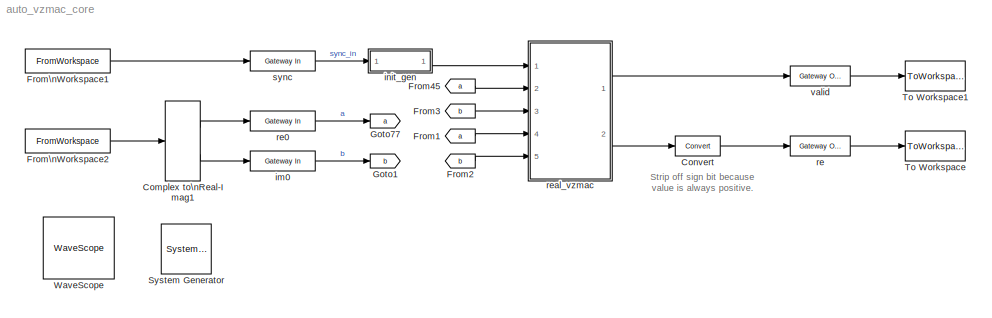
MODEL auto_vzmac_core
KIND model
CONFIG PreLoadFcn = if ~exist('sync')\n  sync=[1];\nend\nif ~exist('zin0')\n  zin0=complex( ...\n    floor(256*rand(1,15*2048+1))/128-1, ...\n    floor(256*rand(1,15*2048+1))/128-1  ...\n  );\nend\n
BLOCK [Reference]  System Generator  REF=xbsIndex_r4/ System Generator
  AttributesFormatString = System\\nGenerator
  Impl_file = ISE Defaults
  Ports = []
  SID = 1
  SourceBlock = xbsIndex_r4/ System Generator
  SourceType = Xilinx System Generator Block
  Synth_file = XST Defaults
  Tag = genX
  UserData = DataTag0
  UserDataPersistent = on
  block_type = sysgen
  clock_wrapper = Clock Enables
  core_generation = According to Block Masks
  dbl_ovrd = According to Block Masks
  dcm_input_clock_period = 10
  deprecated_control = off
  directory = ./auto_vzmac_core
  eval_field = 0
  has_advanced_control = 0
  incr_netlist = off
  infoedit = System Generator
  package = ff1759
  part = xc6vsx475t
  proj_type = Project Navigator
  run_coregen = off
  sg_icon_stat = 50,50,0,0,token,white,0,58c5b5770fe5f7c311f53dbc6e73f0f6,right,,[ ],[ ]
  sg_mask_display = fprintf('','COMMENT: begin icon graphics');\npatch([0 50 50 0 0 ],[0 0 50 50 0 ],[1 1 1 ]);\npatch([1.6375 16.81 27.31 37.81 48.31 27.31 12.1375 1.6375 ],[36.655 36.655 47.155 36.655 47.155 47.155 47.155 36.655 ],[0.933333 0.203922 0.141176 ]);\npatch([12.1375 27.31 16.81 1.6375 12.1375 ],[26.155 26.155 36.655 36.655 26.155 ],[0.698039 0.0313725 0.219608 ]);\npatch([1.6375 16.81 27.31 12.1375 1.63...<+335ch>
  sggui_pos = 326,241,464,470
  simulink_period = 1
  speed = -1
  synthesis_tool = XST
  sysclk_period = 10
  testbench = off
  trim_vbits = Everywhere in SubSystem
  xilinxfamily = virtex6
BLOCK [ComplexToRealImag] Complex to\nReal-Imag1
  Ports = [1, 2]
  SID = 134
BLOCK [Reference] Convert  REF=xbsIndex_r4/Convert
  Ports = [1, 1]
  SID = 139
  SourceBlock = xbsIndex_r4/Convert
  SourceType = Xilinx Type Converter Block
  arith_type = Unsigned
  bin_pt = 14
  block_type = convert
  dbl_ovrd = off
  en = off
  exp_bits = 8
  float_type = Single
  fraction_bits = 24
  gui_display_data_type = Fixed-point
  has_advanced_control = 0
  infoedit = Hardware notes: rounding and saturating require hardware resources; truncating and wrapping do not.
  latency = 0
  n_bits = 20
  overflow = Wrap
  pipeline = off
  quantization = Truncate
  sg_icon_stat = 45,20,1,1,white,blue,0,edca21da,right,,[ ],[ ]
  sg_mask_display = fprintf('','COMMENT: begin icon graphics');\npatch([0 45 45 0 0 ],[0 0 20 20 0 ],[0.77 0.82 0.91 ]);\nplot([0 45 45 0 0 ],[0 0 20 20 0 ]);\npatch([17.55 20.44 22.44 24.44 26.44 22.44 19.55 17.55 ],[12.22 12.22 14.22 12.22 14.22 14.22 14.22 12.22 ],[1 1 1 ]);\npatch([19.55 22.44 20.44 17.55 19.55 ],[10.22 10.22 12.22 12.22 10.22 ],[0.931 0.946 0.973 ]);\npatch([17.55 20.44 22.44 19.55 17.55 ],[8.22...<+320ch>
  sggui_pos = -1,-1,-1,-1
  xl_area = [0,0,0,0,0,0,0]
  xl_use_area = off
BLOCK [From] From1
  CloseFcn = tagdialog Close
  GotoTag = a
  SID = 51
BLOCK [From] From2
  CloseFcn = tagdialog Close
  GotoTag = b
  SID = 52
BLOCK [From] From3
  CloseFcn = tagdialog Close
  GotoTag = b
  SID = 53
BLOCK [From] From45
  CloseFcn = tagdialog Close
  GotoTag = a
  SID = 32
BLOCK [FromWorkspace] From\nWorkspace1
  Interpolate = off
  OutputAfterFinalValue = Setting to zero
  SID = 106
  SampleTime = 1
  VariableName = timeseries(sync)
BLOCK [FromWorkspace] From\nWorkspace2
  Interpolate = off
  OutputAfterFinalValue = Setting to zero
  SID = 135
  SampleTime = 1
  VariableName = timeseries(zin0)
BLOCK [Goto] Goto1
  GotoTag = b
  SID = 44
BLOCK [Goto] Goto77
  GotoTag = a
  SID = 33
BLOCK [ToWorkspace] To Workspace
  MaxDataPoints = inf
  Ports = [1]
  SID = 132
  SampleTime = -1
  VariableName = reout
BLOCK [ToWorkspace] To Workspace1
  MaxDataPoints = inf
  Ports = [1]
  SID = 133
  SampleTime = -1
  VariableName = vout
BLOCK [Reference] WaveScope  REF=xbsIndex_r4/WaveScope
  Ports = []
  SID = 28
  SourceBlock = xbsIndex_r4/WaveScope
  SourceType = Xilinx WaveScope Block
  UserData = DataTag1
  UserDataPersistent = on
  block_type = wavescope
  has_advanced_control = 0
  infoedit = WaveScope
  sg_icon_stat = 71,62,-1,-1,blue,white,0,07734,right,,[ ],[ ]
  sg_mask_display = fprintf('','COMMENT: begin icon graphics');\npatch([0 71 71 0 0 ],[0 0 62 62 0 ],[1 1 1 ]);\nplot([0 71 71 0 0 ],[0 0 62 62 0 ]);\npatch([17.2 28.76 36.76 44.76 52.76 36.76 25.2 17.2 ],[39.88 39.88 47.88 39.88 47.88 47.88 47.88 39.88 ],[0.839 0.874 0.937 ]);\npatch([25.2 36.76 28.76 17.2 25.2 ],[31.88 31.88 39.88 39.88 31.88 ],[0.77 0.82 0.91 ]);\npatch([17.2 28.76 36.76 25.2 17.2 ],[23.88 23.88 3...<+554ch>
  sggui_pos = -1,-1,-1,-1
BLOCK [Reference] im0  REF=xbsIndex_r4/Gateway In
  ADCChannel = '1'
  LOCs = {}
  Ports = [1, 1]
  SID = 45
  SourceBlock = xbsIndex_r4/Gateway In
  SourceType = Xilinx Gateway In Block
  UseAsADC = off
  arith_type = Signed  (2's comp)
  bin_pt = 7
  block_type = gatewayin
  dbl_ovrd = off
  exp_width = 8
  frac_width = 24
  gui_display_data_type = Fixed-point
  has_advanced_control = 0
  hdl_port = on
  infoedit = Gateway in block.  Converts inputs of type Simulink integer, single, double and fixed-point to  Xilinx fixed-point or floating-point data type.<br><br>Hardware notes:  In hardware these blocks become top level input ports.  <repeated x3 — deduplicated; at blocks: im0, re0, sync>
  inherit_from_input = off
  locs_specified = off
  n_bits = 8
  overflow = Saturate
  period = 1
  preci_type = Single
  quantization = Round  (unbiased: +/- Inf)
  sg_icon_stat = 65,20,1,1,white,yellow,1,00d3666e,right,,[ ],[ ]
  sg_mask_display = fprintf('','COMMENT: begin icon graphics');\npatch([0 65 65 0 0 ],[0 0 20 20 0 ],[0.95 0.93 0.65 ]);\nplot([0 65 65 0 0 ],[0 0 20 20 0 ]);\npatch([27.55 30.44 32.44 34.44 36.44 32.44 29.55 27.55 ],[12.22 12.22 14.22 12.22 14.22 14.22 14.22 12.22 ],[1 1 1 ]);\npatch([29.55 32.44 30.44 27.55 29.55 ],[10.22 10.22 12.22 12.22 10.22 ],[0.985 0.979 0.895 ]);\npatch([27.55 30.44 32.44 29.55 27.55 ],[8.22...<+396ch>  <repeated x3 — deduplicated; at blocks: im0, re0, sync>
  sggui_pos = -1,-1,-1,-1
  timing_constraint = None
  xl_area = [0,0,0,0,0,0,0]
  xl_use_area = off
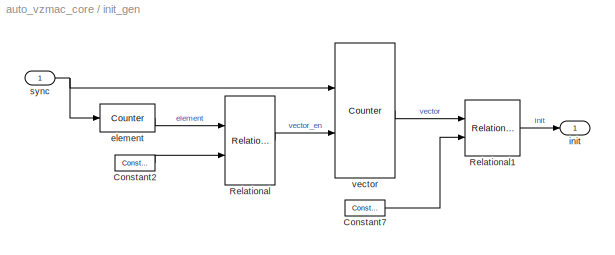
BLOCK [SubSystem] init_gen
  FunctionWithSeparateData = off
  MaskHideContents = off
  MinAlgLoopOccurrences = off
  Opaque = off
  Ports = [1, 1]
  PropExecContextOutsideSubsystem = off
  RTWSystemCode = Auto
  RequestExecContextInheritance = off
  SID = 83
BLOCK [Reference] init_gen/Constant2  REF=xbsIndex_r4/Constant
  Ports = [0, 1]
  SID = 77
  SourceBlock = xbsIndex_r4/Constant
  SourceType = Xilinx Constant Block Block
  arith_type = Unsigned
  bin_pt = 0
  block_type = constant
  carry = CIN
  const = 2048-2
  dbl_ovrd = off
  dsp48_infoedit = The use of this block for DSP48 instructions is deprecated.  Please use the Opmode block.
  equ = P=C
  exp_width = 8
  explicit_period = on
  frac_width = 24
  gui_display_data_type = Fixed-point
  has_advanced_control = 0
  inp1 = P
  inp2 = PCIN>>17
  n_bits = 11
  opr = +
  opselect = C
  period = 1
  preci_type = Single
  sg_icon_stat = 40,16,0,1,white,blue,0,f98bc040,right,,[ ],[ ]
  sg_mask_display = fprintf('','COMMENT: begin icon graphics');\npatch([0 40 40 0 0 ],[0 0 16 16 0 ],[0.77 0.82 0.91 ]);\nplot([0 40 40 0 0 ],[0 0 16 16 0 ]);\npatch([15.55 18.44 20.44 22.44 24.44 20.44 17.55 15.55 ],[10.22 10.22 12.22 10.22 12.22 12.22 12.22 10.22 ],[1 1 1 ]);\npatch([17.55 20.44 18.44 15.55 17.55 ],[8.22 8.22 10.22 10.22 8.22 ],[0.931 0.946 0.973 ]);\npatch([15.55 18.44 20.44 17.55 15.55 ],[6.22 6....<+313ch>
  sggui_pos = -1,-1,-1,-1
BLOCK [Reference] init_gen/Constant7  REF=xbsIndex_r4/Constant
  Ports = [0, 1]
  SID = 78
  SourceBlock = xbsIndex_r4/Constant
  SourceType = Xilinx Constant Block Block
  arith_type = Unsigned
  bin_pt = 0
  block_type = constant
  carry = CIN
  const = 0
  dbl_ovrd = off
  dsp48_infoedit = The use of this block for DSP48 instructions is deprecated.  Please use the Opmode block.
  equ = P=C
  exp_width = 8
  explicit_period = on
  frac_width = 24
  gui_display_data_type = Fixed-point
  has_advanced_control = 0
  inp1 = P
  inp2 = PCIN>>17
  n_bits = 4
  opr = +
  opselect = C
  period = 1
  preci_type = Single
  sg_icon_stat = 40,16,0,1,white,blue,0,bf4ddd8b,right,,[ ],[ ]
  sg_mask_display = fprintf('','COMMENT: begin icon graphics');\npatch([0 40 40 0 0 ],[0 0 16 16 0 ],[0.77 0.82 0.91 ]);\nplot([0 40 40 0 0 ],[0 0 16 16 0 ]);\npatch([15.55 18.44 20.44 22.44 24.44 20.44 17.55 15.55 ],[10.22 10.22 12.22 10.22 12.22 12.22 12.22 10.22 ],[1 1 1 ]);\npatch([17.55 20.44 18.44 15.55 17.55 ],[8.22 8.22 10.22 10.22 8.22 ],[0.931 0.946 0.973 ]);\npatch([15.55 18.44 20.44 17.55 15.55 ],[6.22 6....<+310ch>
  sggui_pos = -1,-1,-1,-1
BLOCK [Reference] init_gen/Relational  REF=xbsIndex_r4/Relational
  Ports = [2, 1]
  SID = 76
  SourceBlock = xbsIndex_r4/Relational
  SourceType = Xilinx Arithmetic Relational Operator Block
  block_type = relational
  dbl_ovrd = off
  en = off
  has_advanced_control = 0
  latency = 1
  mode = a=b
  sg_icon_stat = 50,89,2,1,white,blue,0,3618233f,right,,[ ],[ ]
  sg_mask_display = fprintf('','COMMENT: begin icon graphics');\npatch([0 50 50 0 0 ],[0 0 89 89 0 ],[0.77 0.82 0.91 ]);\nplot([0 50 50 0 0 ],[0 0 89 89 0 ]);\npatch([9.425 19.54 26.54 33.54 40.54 26.54 16.425 9.425 ],[51.77 51.77 58.77 51.77 58.77 58.77 58.77 51.77 ],[1 1 1 ]);\npatch([16.425 26.54 19.54 9.425 16.425 ],[44.77 44.77 51.77 51.77 44.77 ],[0.931 0.946 0.973 ]);\npatch([9.425 19.54 26.54 16.425 9.425 ],[...<+528ch>
  sggui_pos = -1,-1,-1,-1
  xl_area = [0,0,0,0,0,0,0]
  xl_use_area = off
BLOCK [Reference] init_gen/Relational1  REF=xbsIndex_r4/Relational
  Ports = [2, 1]
  SID = 79
  SourceBlock = xbsIndex_r4/Relational
  SourceType = Xilinx Arithmetic Relational Operator Block
  block_type = relational
  dbl_ovrd = off
  en = off
  has_advanced_control = 0
  latency = 0
  mode = a=b
  sg_icon_stat = 55,56,2,1,white,blue,0,2a81ff49,right,,[ ],[ ]
  sg_mask_display = fprintf('','COMMENT: begin icon graphics');\npatch([0 55 55 0 0 ],[0 0 56 56 0 ],[0.77 0.82 0.91 ]);\nplot([0 55 55 0 0 ],[0 0 56 56 0 ]);\npatch([11.425 21.54 28.54 35.54 42.54 28.54 18.425 11.425 ],[35.77 35.77 42.77 35.77 42.77 42.77 42.77 35.77 ],[1 1 1 ]);\npatch([18.425 28.54 21.54 11.425 18.425 ],[28.77 28.77 35.77 35.77 28.77 ],[0.931 0.946 0.973 ]);\npatch([11.425 21.54 28.54 18.425 11.42...<+473ch>
  sggui_pos = -1,-1,-1,-1
  xl_area = [0,0,0,0,0,0,0]
  xl_use_area = off
BLOCK [Reference] init_gen/element  REF=xbsIndex_r4/Counter
  Ports = [1, 1]
  SID = 72
  SourceBlock = xbsIndex_r4/Counter
  SourceType = Xilinx Counter Block
  arith_type = Unsigned
  bin_pt = 0
  block_type = counter
  cnt_by_val = 1
  cnt_to = Inf
  cnt_type = Free Running
  dbl_ovrd = off
  en = off
  explicit_period = on
  has_advanced_control = 0
  implementation = Fabric
  infoedit = Hardware notes: Free running counters are the least expensive in hardware.  A count limited counter is implemented by combining a counter with a comparator.
  load_pin = off
  n_bits = 11
  operation = Up
  period = 1
  rst = on
  sg_icon_stat = 55,28,1,1,white,blue,0,803eba70,right,,[ ],[ ]
  sg_mask_display = fprintf('','COMMENT: begin icon graphics');\npatch([0 55 55 0 0 ],[0 0 28 28 0 ],[0.77 0.82 0.91 ]);\nplot([0 55 55 0 0 ],[0 0 28 28 0 ]);\npatch([18.1 23.88 27.88 31.88 35.88 27.88 22.1 18.1 ],[18.44 18.44 22.44 18.44 22.44 22.44 22.44 18.44 ],[1 1 1 ]);\npatch([22.1 27.88 23.88 18.1 22.1 ],[14.44 14.44 18.44 18.44 14.44 ],[0.931 0.946 0.973 ]);\npatch([18.1 23.88 27.88 22.1 18.1 ],[10.44 10.44 1...<+375ch>
  sggui_pos = 84,-146,436,765
  start_count = 0
  use_behavioral_HDL = on
  xl_area = [0,0,0,0,0,0,0]
  xl_use_area = off
BLOCK [Outport] init_gen/init
  IconDisplay = Port number
  SID = 85
BLOCK [Inport] init_gen/sync
  IconDisplay = Port number
  SID = 84
BLOCK [Reference] init_gen/vector  REF=xbsIndex_r4/Counter
  Ports = [2, 1]
  SID = 73
  SourceBlock = xbsIndex_r4/Counter
  SourceType = Xilinx Counter Block
  arith_type = Unsigned
  bin_pt = 0
  block_type = counter
  cnt_by_val = 1
  cnt_to = 13
  cnt_type = Count Limited
  dbl_ovrd = off
  en = on
  explicit_period = on
  has_advanced_control = 0
  implementation = Fabric
  infoedit = Hardware notes: Free running counters are the least expensive in hardware.  A count limited counter is implemented by combining a counter with a comparator.
  load_pin = off
  n_bits = 4
  operation = Up
  period = 1
  rst = on
  sg_icon_stat = 60,135,2,1,white,blue,0,131a2a7a,right,,[ ],[ ]
  sg_mask_display = fprintf('','COMMENT: begin icon graphics');\npatch([0 60 60 0 0 ],[0 0 135 135 0 ],[0.77 0.82 0.91 ]);\nplot([0 60 60 0 0 ],[0 0 135 135 0 ]);\npatch([12.2 23.76 31.76 39.76 47.76 31.76 20.2 12.2 ],[75.88 75.88 83.88 75.88 83.88 83.88 83.88 75.88 ],[1 1 1 ]);\npatch([20.2 31.76 23.76 12.2 20.2 ],[67.88 67.88 75.88 75.88 67.88 ],[0.931 0.946 0.973 ]);\npatch([12.2 23.76 31.76 20.2 12.2 ],[59.88 59....<+441ch>
  sggui_pos = 67,-88,436,765
  start_count = 0
  use_behavioral_HDL = on
  xl_area = [0,0,0,0,0,0,0]
  xl_use_area = off
BLOCK [Reference] re  REF=xbsIndex_r4/Gateway Out
  DACChannel = '1'
  LOCs = {}
  Ports = [1, 1]
  SID = 14
  SourceBlock = xbsIndex_r4/Gateway Out
  SourceType = Xilinx Gateway Out Block
  UseAsDAC = off
  block_type = gatewayout
  has_advanced_control = 0
  hdl_port = on
  infoedit = Gateway out block.  Converts Xilinx fixed-point or floating-point type inputs into ouputs of type Simulink integer, single, double, or fixed-point.<br><br>Hardware notes:  In hardware these blocks become top level output ports or are discarded, depending on how they are configured.
  inherit_from_input = off
  locs_specified = off
  sg_icon_stat = 60,20,1,1,white,yellow,1,cc31b7ac,right,,[ ],[ ]
  sg_mask_display = fprintf('','COMMENT: begin icon graphics');\npatch([0 60 60 0 0 ],[0 0 20 20 0 ],[0.95 0.93 0.65 ]);\nplot([0 60 60 0 0 ],[0 0 20 20 0 ]);\npatch([25.55 28.44 30.44 32.44 34.44 30.44 27.55 25.55 ],[12.22 12.22 14.22 12.22 14.22 14.22 14.22 12.22 ],[1 1 1 ]);\npatch([27.55 30.44 28.44 25.55 27.55 ],[10.22 10.22 12.22 12.22 10.22 ],[0.985 0.979 0.895 ]);\npatch([25.55 28.44 30.44 27.55 25.55 ],[8.22...<+397ch>
  sggui_pos = -1,-1,-1,-1
  timing_constraint = None
  xl_area = [0 0 0 0 21 0 0]
  xl_use_area = off
BLOCK [Reference] re0  REF=xbsIndex_r4/Gateway In
  ADCChannel = '1'
  LOCs = {}
  Ports = [1, 1]
  SID = 34
  SourceBlock = xbsIndex_r4/Gateway In
  SourceType = Xilinx Gateway In Block
  UseAsADC = off
  arith_type = Signed  (2's comp)
  bin_pt = 7
  block_type = gatewayin
  dbl_ovrd = off
  exp_width = 8
  frac_width = 24
  gui_display_data_type = Fixed-point
  has_advanced_control = 0
  hdl_port = on
  inherit_from_input = off
  locs_specified = off
  n_bits = 8
  overflow = Saturate
  period = 1
  preci_type = Single
  quantization = Round  (unbiased: +/- Inf)
  sg_icon_stat = 65,20,1,1,white,yellow,1,00d3666e,right,,[ ],[ ]
  sggui_pos = -1,-1,-1,-1
  timing_constraint = None
  xl_area = [0,0,0,0,0,0,0]
  xl_use_area = off
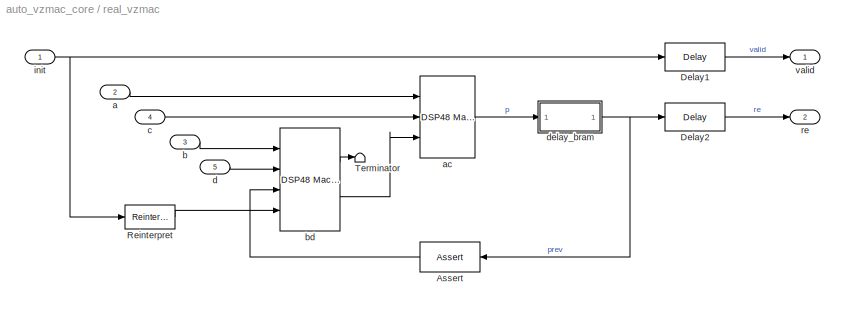
BLOCK [SubSystem] real_vzmac
  FunctionWithSeparateData = off
  MaskHideContents = off
  MinAlgLoopOccurrences = off
  Opaque = off
  Ports = [5, 2]
  PropExecContextOutsideSubsystem = off
  RTWSystemCode = Auto
  RequestExecContextInheritance = off
  SID = 96
BLOCK [Reference] real_vzmac/Assert  REF=xbsIndex_r4/Assert
  Ports = [1, 1]
  SID = 141
  SourceBlock = xbsIndex_r4/Assert
  SourceType = Xilinx Assert Block
  arith_type = Signed  (2's comp)
  assert_rate = on
  assert_type = on
  bin_pt = 14
  block_type = assert
  exp_width = 8
  frac_width = 24
  gui_display_data_type = Fixed-point
  has_advanced_control = 0
  infoedit = Asserts a user-defined sample rate and/or type on a signal.<br><br>Hardware notes: In hardware this block costs nothing.
  n_bits = 21
  output_port = on
  period = 1
  preci_type = Single
  rate_source = Explicitly
  sg_icon_stat = 60,30,1,1,white,blue,0,9657e937,left,,[ ],[ ]
  sg_mask_display = fprintf('','COMMENT: begin icon graphics');\npatch([0 60 60 0 0 ],[0 0 30 30 0 ],[0.77 0.82 0.91 ]);\nplot([0 60 60 0 0 ],[0 0 30 30 0 ]);\npatch([21.1 26.88 30.88 34.88 38.88 30.88 25.1 21.1 ],[19.44 19.44 23.44 19.44 23.44 23.44 23.44 19.44 ],[1 1 1 ]);\npatch([25.1 30.88 26.88 21.1 25.1 ],[15.44 15.44 19.44 19.44 15.44 ],[0.931 0.946 0.973 ]);\npatch([21.1 26.88 30.88 25.1 21.1 ],[11.44 11.44 1...<+301ch>
  sggui_pos = -1,-1,-1,-1
  type_source = Explicitly
BLOCK [Reference] real_vzmac/Delay1  REF=xbsIndex_r4/Delay
  Ports = [1, 1]
  SID = 39
  SourceBlock = xbsIndex_r4/Delay
  SourceType = Xilinx Delay Block
  block_type = delay
  dbl_ovrd = off
  en = off
  has_advanced_control = 0
  infoedit = Hardware notes: A delay line is a chain, each link of which is an SRL16 followed by a flip-flop.
  infoeditControl = Selection of Reset will increase slice count due to use of real FFs and instead of SRLs
  latency = 1
  reg_retiming = on
  rst = off
  sg_icon_stat = 60,28,1,1,white,blue,0,07b98262,right,,[ ],[ ]
  sg_mask_display = fprintf('','COMMENT: begin icon graphics');\npatch([0 60 60 0 0 ],[0 0 28 28 0 ],[0.77 0.82 0.91 ]);\nplot([0 60 60 0 0 ],[0 0 28 28 0 ]);\npatch([21.1 26.88 30.88 34.88 38.88 30.88 25.1 21.1 ],[18.44 18.44 22.44 18.44 22.44 22.44 22.44 18.44 ],[1 1 1 ]);\npatch([25.1 30.88 26.88 21.1 25.1 ],[14.44 14.44 18.44 18.44 14.44 ],[0.931 0.946 0.973 ]);\npatch([21.1 26.88 30.88 25.1 21.1 ],[10.44 10.44 1...<+316ch>
  sggui_pos = -1,-1,-1,-1
  xl_area = [0,0,0,0,0,0,0]
  xl_use_area = off
BLOCK [Reference] real_vzmac/Delay2  REF=xbsIndex_r4/Delay
  Ports = [1, 1]
  SID = 40
  SourceBlock = xbsIndex_r4/Delay
  SourceType = Xilinx Delay Block
  block_type = delay
  dbl_ovrd = off
  en = off
  has_advanced_control = 0
  infoedit = Hardware notes: A delay line is a chain, each link of which is an SRL16 followed by a flip-flop.
  infoeditControl = Selection of Reset will increase slice count due to use of real FFs and instead of SRLs
  latency = 1
  reg_retiming = on
  rst = off
  sg_icon_stat = 60,28,1,1,white,blue,0,07b98262,right,,[ ],[ ]
  sg_mask_display = fprintf('','COMMENT: begin icon graphics');\npatch([0 60 60 0 0 ],[0 0 28 28 0 ],[0.77 0.82 0.91 ]);\nplot([0 60 60 0 0 ],[0 0 28 28 0 ]);\npatch([21.1 26.88 30.88 34.88 38.88 30.88 25.1 21.1 ],[18.44 18.44 22.44 18.44 22.44 22.44 22.44 18.44 ],[1 1 1 ]);\npatch([25.1 30.88 26.88 21.1 25.1 ],[14.44 14.44 18.44 18.44 14.44 ],[0.931 0.946 0.973 ]);\npatch([21.1 26.88 30.88 25.1 21.1 ],[10.44 10.44 1...<+316ch>
  sggui_pos = -1,-1,-1,-1
  xl_area = [0,0,0,0,0,0,0]
  xl_use_area = off
BLOCK [Reference] real_vzmac/Reinterpret  REF=xbsIndex_r4/Reinterpret
  Ports = [1, 1]
  SID = 68
  SourceBlock = xbsIndex_r4/Reinterpret
  SourceType = Xilinx Type Reinterpreter Block
  arith_type = Unsigned
  bin_pt = 0
  block_type = reinterpret
  force_arith_type = on
  force_bin_pt = on
  has_advanced_control = 0
  infoedit = Changes signal type without altering the binary representation.   You can change the signal between signed and unsigned, and relocate the binary point.<br><br>Hardware notes: In hardware this block costs nothing.<br><br>Example:  Suppose the input is 6 bits wide, signed, with 2 fractional bits, and the output is forced to unsigned with 0 fractional bits.  Then an input of -2.0 (1110.00 in binary 2...<+58ch>
  sg_icon_stat = 50,24,1,1,white,blue,0,6b04d0b0,right,,[ ],[ ]
  sg_mask_display = fprintf('','COMMENT: begin icon graphics');\npatch([0 50 50 0 0 ],[0 0 24 24 0 ],[0.77 0.82 0.91 ]);\nplot([0 50 50 0 0 ],[0 0 24 24 0 ]);\npatch([18.325 22.66 25.66 28.66 31.66 25.66 21.325 18.325 ],[15.33 15.33 18.33 15.33 18.33 18.33 18.33 15.33 ],[1 1 1 ]);\npatch([21.325 25.66 22.66 18.325 21.325 ],[12.33 12.33 15.33 15.33 12.33 ],[0.931 0.946 0.973 ]);\npatch([18.325 22.66 25.66 21.325 18.32...<+324ch>
  sggui_pos = 15,25,390,381
BLOCK [Terminator] real_vzmac/Terminator
  SID = 95
BLOCK [Inport] real_vzmac/a
  IconDisplay = Port number
  Port = 2
  SID = 99
BLOCK [Reference] real_vzmac/ac  REF=xbsIndex_r4/DSP48 Macro 2.1 
  AvailableInstructions = '(A+D)\n(A+D)*B\n(A+D)*B+C\n(A+D)*B+C+CARRYIN\n(A+D)*B+CARRYIN\n(A+D)*B+P\n(A+D)*B+P+CARRYIN\n(A+D)*B+P>>17\n(A+D)*B+P>>17+CARRYIN\n(A+D)*B+PCIN\n(A+D)*B+PCIN+CARRYIN\n(A+D)*B+PCIN>>17\n(A+D)*B+PCIN>>17+CARRYIN\n(A+D)*BCIN\n(A+D)*BCIN+C\n(A+D)*BCIN+C+CARRYIN\n(A+D)*BCIN+CARRYIN\n(A+D)*BCIN+P\n(A+D)*BCIN+P+CARRYIN\n(A+D)*BCIN+P>>17\n(A+D)*BCIN+P>>17+CARRYIN\n(A+D)*BCIN+PCIN\n(A+D)*BCIN+PCIN+CARRYIN...<+47989ch>
  Ports = [3, 1]
  SID = 36
  SourceBlock = xbsIndex_r4/DSP48 Macro 2.1
  SourceType = Xilinx DSP48 Macro 2.1  Block
  areg_1 = off
  areg_2 = on
  areg_3 = on
  areg_4 = on
  block_type = xbip_dsp48_macro_v2_1
  breg_1 = off
  breg_2 = on
  breg_3 = on
  breg_4 = on
  cinreg_1 = off
  cinreg_2 = off
  cinreg_3 = off
  cinreg_4 = off
  cinreg_5 = off
  concatreg_3 = off
  concatreg_4 = off
  concatreg_5 = off
  creg_1 = off
  creg_2 = off
  creg_3 = off
  creg_4 = off
  creg_5 = off
  dreg_1 = off
  dreg_2 = off
  dreg_3 = off
  dspimage = <!DOCTYPE HTML PUBLIC \"-//W3C//DTD HTML 4.0//EN\" \"http://www.w3.org/TR/REC-html40/strict.dtd\">\n<html><head><meta name=\"qrichtext\" content=\"1\" /><style type=\"text/css\">\np, li { white-space: pre-wrap; }\n</style></head><body style=\" font-family:'Sans'; font-size:10pt; font-weight:400; font-style:normal;\">\n<p style=\" margin-top:0px; margin-bottom:0px; margin-left:0px; margin-right:0px...<+168ch>
  dsptool_ready = true
  dsptype = Target XtremeDSP Slice: DSP48E1
  gui_behaviour = Sysgen
  has_a_ce = off
  has_a_sclr = off
  has_acout = off
  has_advanced_control = 0
  has_b_ce = off
  has_b_sclr = off
  has_bcout = off
  has_c_ce = off
  has_c_sclr = off
  has_carrycascout = off
  has_carryout = off
  has_ce = off
  has_concat_ce = off
  has_concat_sclr = off
  has_d_ce = off
  has_d_sclr = off
  has_m_ce = off
  has_m_sclr = off
  has_p_ce = off
  has_p_sclr = off
  has_pcout = off
  has_sclr = off
  has_sel_ce = off
  has_sel_sclr = off
  infoedit = <html>Valid operands: CONCAT, P, C, PCIN, P>>17, PCIN>>17, CARRYIN, CARRYCASCIN, ACIN, A, BCIN,B<br><br>Valid operators: +, -, *, ()<br><br>Valid functions: RNDSIMPLE, RNDSYM<br><br>Instructions are case insensitive and tolerate spaces.</html>
  instruction1 = #
  instruction_list = A*B+PCIN
  ip_name = DSP48 Macro
  ip_version = 2.1
  ipcore_fpga_part = xlipgetpartsetting(gcb, {'virtex6', 'xc6vlx75t', '-3', 'ff784'})
  ipcore_latency_function = 'has_combinational'
  ipcore_port_config = { 'carryin' => { 'arith' => 'ufix', 'binpt' => 0.00000000000, 'width' => 1.00000000000}, 'carrycascin' => { 'arith' => 'ufix', 'binpt' => 0.00000000000, 'width' => 1.00000000000}, 'carrycascout' => { 'arith' => 'ufix', 'binpt' => 0.00000000000, 'width' => 1.00000000000}, 'carryout' => { 'arith' => 'ufix', 'binpt' => 0.00000000000, 'width' => 1.00000000000}}
  ipcore_usecache = true
  ipcore_useipmodelcache = true
  ipcore_verbose = false
  ipcore_xco_need_fpga_part = true
  mreg_5 = on
  opreg_1 = off
  opreg_2 = off
  opreg_3 = off
  opreg_4 = off
  opreg_5 = off
  output_properties = User_Defined
  p_binarywidth = 14
  p_width = 21
  pipeline_options = By_Tier
  port_translation_map = { 'ce' => 'en', 'sclr' => 'rst'}
  preg_6 = on
  sg_icon_stat = 55,82,3,1,white,blue,0,9134f0c3,right,,[ ],[ ]
  sg_mask_display = fprintf('','COMMENT: begin icon graphics');\npatch([0 55 55 0 0 ],[0 0 82 82 0 ],[0.77 0.82 0.91 ]);\nplot([0 55 55 0 0 ],[0 0 82 82 0 ]);\npatch([11.425 21.54 28.54 35.54 42.54 28.54 18.425 11.425 ],[48.77 48.77 55.77 48.77 55.77 55.77 55.77 48.77 ],[1 1 1 ]);\npatch([18.425 28.54 21.54 11.425 18.425 ],[41.77 41.77 48.77 48.77 41.77 ],[0.931 0.946 0.973 ]);\npatch([11.425 21.54 28.54 18.425 11.42...<+469ch>
  sggui_pos = -1,-1,-1,-1
  show_filtered = off
  structural_sim = false
  tier_1 = off
  tier_2 = on
  tier_3 = on
  tier_4 = on
  tier_5 = on
  tier_6 = on
  use_dsp48 = on
  wrapper_available = true
BLOCK [Inport] real_vzmac/b
  IconDisplay = Port number
  Port = 3
  SID = 102
BLOCK [Reference] real_vzmac/bd  REF=xbsIndex_r4/DSP48 Macro 2.1 
  AvailableInstructions = '(A+D)\n(A+D)*B\n(A+D)*B+C\n(A+D)*B+C+CARRYIN\n(A+D)*B+CARRYIN\n(A+D)*B+P\n(A+D)*B+P+CARRYIN\n(A+D)*B+P>>17\n(A+D)*B+P>>17+CARRYIN\n(A+D)*B+PCIN\n(A+D)*B+PCIN+CARRYIN\n(A+D)*B+PCIN>>17\n(A+D)*B+PCIN>>17+CARRYIN\n(A+D)*BCIN\n(A+D)*BCIN+C\n(A+D)*BCIN+C+CARRYIN\n(A+D)*BCIN+CARRYIN\n(A+D)*BCIN+P\n(A+D)*BCIN+P+CARRYIN\n(A+D)*BCIN+P>>17\n(A+D)*BCIN+P>>17+CARRYIN\n(A+D)*BCIN+PCIN\n(A+D)*BCIN+PCIN+CARRYIN...<+47989ch>
  Ports = [4, 2]
  SID = 35
  SourceBlock = xbsIndex_r4/DSP48 Macro 2.1
  SourceType = Xilinx DSP48 Macro 2.1  Block
  areg_1 = off
  areg_2 = off
  areg_3 = on
  areg_4 = on
  block_type = xbip_dsp48_macro_v2_1
  breg_1 = off
  breg_2 = off
  breg_3 = on
  breg_4 = on
  cinreg_1 = off
  cinreg_2 = off
  cinreg_3 = off
  cinreg_4 = off
  cinreg_5 = off
  concatreg_3 = off
  concatreg_4 = off
  concatreg_5 = off
  creg_1 = off
  creg_2 = off
  creg_3 = on
  creg_4 = on
  creg_5 = on
  dreg_1 = off
  dreg_2 = off
  dreg_3 = off
  dspimage = <!DOCTYPE HTML PUBLIC \"-//W3C//DTD HTML 4.0//EN\" \"http://www.w3.org/TR/REC-html40/strict.dtd\">\n<html><head><meta name=\"qrichtext\" content=\"1\" /><style type=\"text/css\">\np, li { white-space: pre-wrap; }\n</style></head><body style=\" font-family:'Sans'; font-size:10pt; font-weight:400; font-style:normal;\">\n<p style=\" margin-top:0px; margin-bottom:0px; margin-left:0px; margin-right:0px...<+168ch>
  dsptool_ready = true
  dsptype = Target XtremeDSP Slice: DSP48E1
  gui_behaviour = Sysgen
  has_a_ce = off
  has_a_sclr = off
  has_acout = off
  has_advanced_control = 0
  has_b_ce = off
  has_b_sclr = off
  has_bcout = off
  has_c_ce = off
  has_c_sclr = off
  has_carrycascout = off
  has_carryout = off
  has_ce = off
  has_concat_ce = off
  has_concat_sclr = off
  has_d_ce = off
  has_d_sclr = off
  has_m_ce = off
  has_m_sclr = off
  has_p_ce = off
  has_p_sclr = off
  has_pcout = on
  has_sclr = off
  has_sel_ce = off
  has_sel_sclr = off
  infoedit = <html>Valid operands: CONCAT, P, C, PCIN, P>>17, PCIN>>17, CARRYIN, CARRYCASCIN, ACIN, A, BCIN,B<br><br>Valid operators: +, -, *, ()<br><br>Valid functions: RNDSIMPLE, RNDSYM<br><br>Instructions are case insensitive and tolerate spaces.</html>
  instruction1 = #
  instruction_list = A*B+C\nA*B
  ip_name = DSP48 Macro
  ip_version = 2.1
  ipcore_fpga_part = xlipgetpartsetting(gcb, {'virtex6', 'xc6vlx75t', '-3', 'ff784'})
  ipcore_latency_function = 'has_combinational'
  ipcore_port_config = { 'carryin' => { 'arith' => 'ufix', 'binpt' => 0.00000000000, 'width' => 1.00000000000}, 'carrycascin' => { 'arith' => 'ufix', 'binpt' => 0.00000000000, 'width' => 1.00000000000}, 'carrycascout' => { 'arith' => 'ufix', 'binpt' => 0.00000000000, 'width' => 1.00000000000}, 'carryout' => { 'arith' => 'ufix', 'binpt' => 0.00000000000, 'width' => 1.00000000000}}
  ipcore_usecache = true
  ipcore_useipmodelcache = true
  ipcore_verbose = false
  ipcore_xco_need_fpga_part = true
  mreg_5 = on
  opreg_1 = off
  opreg_2 = off
  opreg_3 = on
  opreg_4 = on
  opreg_5 = on
  output_properties = User_Defined
  p_binarywidth = 14
  p_width = 21
  pipeline_options = By_Tier
  port_translation_map = { 'ce' => 'en', 'sclr' => 'rst'}
  preg_6 = on
  sg_icon_stat = 60,103,4,2,white,blue,0,b6da0208,right,,[ ],[ ]
  sg_mask_display = fprintf('','COMMENT: begin icon graphics');\npatch([0 60 60 0 0 ],[0 0 103 103 0 ],[0.77 0.82 0.91 ]);\nplot([0 60 60 0 0 ],[0 0 103 103 0 ]);\npatch([12.2 23.76 31.76 39.76 47.76 31.76 20.2 12.2 ],[59.88 59.88 67.88 59.88 67.88 67.88 67.88 59.88 ],[1 1 1 ]);\npatch([20.2 31.76 23.76 12.2 20.2 ],[51.88 51.88 59.88 59.88 51.88 ],[0.931 0.946 0.973 ]);\npatch([12.2 23.76 31.76 20.2 12.2 ],[43.88 43....<+539ch>
  sggui_pos = -1,-1,-1,-1
  show_filtered = off
  structural_sim = false
  tier_1 = off
  tier_2 = off
  tier_3 = on
  tier_4 = on
  tier_5 = on
  tier_6 = on
  use_dsp48 = on
  wrapper_available = true
BLOCK [Inport] real_vzmac/c
  IconDisplay = Port number
  Port = 4
  SID = 101
BLOCK [Inport] real_vzmac/d
  IconDisplay = Port number
  Port = 5
  SID = 103
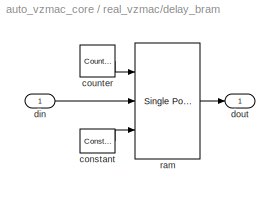
BLOCK [SubSystem] real_vzmac/delay_bram
  AncestorBlock = casper_library_delays/delay_bram
  FunctionWithSeparateData = off
  MaskCallbackString = |||
  MaskDescription = A delay block that uses BRAM for its storage.
  MaskEnableString = on,on,on,on
  MaskHelp = eval('xlWeb(''http://casper.berkeley.edu/wiki/Delay_bram'')')
  MaskHideContents = off
  MaskIconFrame = on
  MaskIconOpaque = on
  MaskIconRotate = none
  MaskIconUnits = autoscale
  MaskInitialization = delay_bram_init(gcb, ...\n    'DelayLen', DelayLen, ...\n    'bram_latency', bram_latency, ...\n    'use_dsp48', use_dsp48, ...\n    'async', async);
  MaskPortRotate = default
  MaskPromptString = Delay By:|BRAM Latency|Use DSP48|asynchronous operation
  MaskSelfModifiable = on
  MaskStyleString = edit,edit,checkbox,checkbox
  MaskToolTipString = on,on,on,on
  MaskTunableValueString = on,on,on,on
  MaskType = delay_bram
  MaskValueString = 2048-5|3|on|off
  MaskVariables = DelayLen=@1;bram_latency=@2;use_dsp48=&3;async=&4;
  MaskVisibilityString = on,on,on,on
  MinAlgLoopOccurrences = off
  Opaque = off
  Ports = [1, 1]
  PropExecContextOutsideSubsystem = off
  RTWSystemCode = Auto
  RequestExecContextInheritance = off
  SID = 94
  UserData = DataTag2
  UserDataPersistent = on
BLOCK [Reference] real_vzmac/delay_bram/constant  REF=xbsIndex_r4/Constant
  Ports = [0, 1]
  SID = 94:2
  SourceBlock = xbsIndex_r4/Constant
  SourceType = Xilinx Constant Block Block
  arith_type = Boolean
  bin_pt = 14
  block_type = constant
  carry = CIN
  const = 1
  dbl_ovrd = off
  dsp48_infoedit = The use of this block for DSP48 instructions is deprecated.  Please use the Opmode block.
  equ = P=C
  exp_width = 8
  explicit_period = on
  frac_width = 24
  gui_display_data_type = Fixed-point
  has_advanced_control = 0
  inp1 = P
  inp2 = PCIN>>17
  n_bits = 16
  opr = +
  opselect = C
  period = 1
  preci_type = Single
  sg_icon_stat = 35,24,0,1,white,blue,0,1c72b5be,right,,[ ],[ ]
  sg_mask_display = fprintf('','COMMENT: begin icon graphics');\npatch([0 35 35 0 0 ],[0 0 24 24 0 ],[0.77 0.82 0.91 ]);\nplot([0 35 35 0 0 ],[0 0 24 24 0 ]);\npatch([10.325 14.66 17.66 20.66 23.66 17.66 13.325 10.325 ],[15.33 15.33 18.33 15.33 18.33 18.33 18.33 15.33 ],[1 1 1 ]);\npatch([13.325 17.66 14.66 10.325 13.325 ],[12.33 12.33 15.33 15.33 12.33 ],[0.931 0.946 0.973 ]);\npatch([10.325 14.66 17.66 13.325 10.32...<+327ch>
  sggui_pos = -1,-1,-1,-1
BLOCK [Reference] real_vzmac/delay_bram/counter  REF=xbsIndex_r4/Counter
  Ports = [0, 1]
  SID = 94:3
  SourceBlock = xbsIndex_r4/Counter
  SourceType = Xilinx Counter Block
  arith_type = Unsigned
  bin_pt = 0
  block_type = counter
  cnt_by_val = 1
  cnt_to = DelayLen - bram_latency - 1
  cnt_type = Count Limited
  dbl_ovrd = off
  en = off
  explicit_period = on
  has_advanced_control = 0
  implementation = DSP48
  infoedit = Hardware notes: Free running counters are the least expensive in hardware.  A count limited counter is implemented by combining a counter with a comparator.
  load_pin = off
  n_bits = 11
  operation = Up
  period = 1
  rst = off
  sg_icon_stat = 35,32,0,1,white,blue,0,4b061529,right,,[ ],[ ]
  sg_mask_display = fprintf('','COMMENT: begin icon graphics');\npatch([0 35 35 0 0 ],[0 0 32 32 0 ],[0.77 0.82 0.91 ]);\nplot([0 35 35 0 0 ],[0 0 32 32 0 ]);\npatch([8.1 13.88 17.88 21.88 25.88 17.88 12.1 8.1 ],[20.44 20.44 24.44 20.44 24.44 24.44 24.44 20.44 ],[1 1 1 ]);\npatch([12.1 17.88 13.88 8.1 12.1 ],[16.44 16.44 20.44 20.44 16.44 ],[0.931 0.946 0.973 ]);\npatch([8.1 13.88 17.88 12.1 8.1 ],[12.44 12.44 16.44 ...<+338ch>
  sggui_pos = 49,-86,436,765
  start_count = 0
  use_behavioral_HDL = off
  use_rpm = on
  xl_area = [0,0,0,0,0,0,0]
  xl_use_area = off
BLOCK [Inport] real_vzmac/delay_bram/din
  IconDisplay = Port number
  SID = 94:1
BLOCK [Outport] real_vzmac/delay_bram/dout
  IconDisplay = Port number
  SID = 94:5
BLOCK [Reference] real_vzmac/delay_bram/ram  REF=xbsIndex_r4/Single Port RAM
  Ports = [3, 1]
  SID = 94:4
  SourceBlock = xbsIndex_r4/Single Port RAM
  SourceType = Xilinx Single Port Random Access Memory Block
  block_type = spram
  dbl_ovrd = off
  depth = 2048
  distributed_mem = Block RAM
  en = off
  has_advanced_control = 0
  initVector = 0
  init_reg = 0
  latency = bram_latency
  optimize = Area
  rst = off
  sg_icon_stat = 65,116,3,1,white,blue,0,0b4315b4,right,,[ ],[ ]
  sg_mask_display = fprintf('','COMMENT: begin icon graphics');\npatch([0 65 65 0 0 ],[0 0 116 116 0 ],[0.77 0.82 0.91 ]);\nplot([0 65 65 0 0 ],[0 0 116 116 0 ]);\npatch([11.975 24.98 33.98 42.98 51.98 33.98 20.975 11.975 ],[67.99 67.99 76.99 67.99 76.99 76.99 76.99 67.99 ],[1 1 1 ]);\npatch([20.975 33.98 24.98 11.975 20.975 ],[58.99 58.99 67.99 67.99 58.99 ],[0.931 0.946 0.973 ]);\npatch([11.975 24.98 33.98 20.975 1...<+482ch>
  sggui_pos = -1,-1,-1,-1
  write_mode = Read Before Write
  xl_area = [0,0,0,0,0,0,0]
  xl_use_area = off
BLOCK [Inport] real_vzmac/init
  IconDisplay = Port number
  SID = 97
BLOCK [Outport] real_vzmac/re
  IconDisplay = Port number
  Port = 2
  SID = 100
BLOCK [Outport] real_vzmac/valid
  IconDisplay = Port number
  SID = 98
BLOCK [Reference] sync  REF=xbsIndex_r4/Gateway In
  ADCChannel = '1'
  LOCs = {}
  Ports = [1, 1]
  SID = 49
  SourceBlock = xbsIndex_r4/Gateway In
  SourceType = Xilinx Gateway In Block
  UseAsADC = off
  arith_type = Boolean
  bin_pt = 7
  block_type = gatewayin
  dbl_ovrd = off
  exp_width = 8
  frac_width = 24
  gui_display_data_type = Boolean
  has_advanced_control = 0
  hdl_port = on
  inherit_from_input = off
  locs_specified = off
  n_bits = 8
  overflow = Saturate
  period = 1
  preci_type = Single
  quantization = Round  (unbiased: +/- Inf)
  sg_icon_stat = 65,20,1,1,white,yellow,1,00d3666e,right,,[ ],[ ]
  sggui_pos = -1,-1,-1,-1
  timing_constraint = None
  xl_area = [0,0,0,0,0,0,0]
  xl_use_area = off
BLOCK [Reference] valid  REF=xbsIndex_r4/Gateway Out
  DACChannel = '1'
  LOCs = {}
  Ports = [1, 1]
  SID = 43
  SourceBlock = xbsIndex_r4/Gateway Out
  SourceType = Xilinx Gateway Out Block
  UseAsDAC = off
  block_type = gatewayout
  has_advanced_control = 0
  hdl_port = on
  infoedit = Gateway out block.  Converts Xilinx fixed-point or floating-point type inputs into ouputs of type Simulink integer, single, double, or fixed-point.<br><br>Hardware notes:  In hardware these blocks become top level output ports or are discarded, depending on how they are configured.
  inherit_from_input = off
  locs_specified = off
  sg_icon_stat = 60,20,1,1,white,yellow,1,cc31b7ac,right,,[ ],[ ]
  sg_mask_display = fprintf('','COMMENT: begin icon graphics');\npatch([0 60 60 0 0 ],[0 0 20 20 0 ],[0.95 0.93 0.65 ]);\nplot([0 60 60 0 0 ],[0 0 20 20 0 ]);\npatch([25.55 28.44 30.44 32.44 34.44 30.44 27.55 25.55 ],[12.22 12.22 14.22 12.22 14.22 14.22 14.22 12.22 ],[1 1 1 ]);\npatch([27.55 30.44 28.44 25.55 27.55 ],[10.22 10.22 12.22 12.22 10.22 ],[0.985 0.979 0.895 ]);\npatch([25.55 28.44 30.44 27.55 25.55 ],[8.22...<+397ch>
  sggui_pos = -1,-1,-1,-1
  timing_constraint = None
  xl_area = [0 0 0 0 21 0 0]
  xl_use_area = off
ANNOTATION (root): Strip off sign bit because\nvalue is always positive.
LINE Complex to\nReal-Imag1:1 -> re0:1
LINE Complex to\nReal-Imag1:2 -> im0:1
LINE Convert:1 -> re:1
LINE From1:1 -> real_vzmac:4
LINE From2:1 -> real_vzmac:5
LINE From3:1 -> real_vzmac:3
LINE From45:1 -> real_vzmac:2
LINE From\nWorkspace1:1 -> sync:1
LINE From\nWorkspace2:1 -> Complex to\nReal-Imag1:1
LINE im0:1 -> Goto1:1
LINE init_gen/Constant2:1 -> init_gen/Relational:2
LINE init_gen/Constant7:1 -> init_gen/Relational1:2
LINE init_gen/Relational1:1 -> init_gen/init:1
LINE init_gen/Relational:1 -> init_gen/vector:2
LINE init_gen/element:1 -> init_gen/Relational:1
NET init_gen/sync:1 -> init_gen/element:1, init_gen/vector:1
LINE init_gen/vector:1 -> init_gen/Relational1:1
LINE init_gen:1 -> real_vzmac:1
LINE re0:1 -> Goto77:1
LINE re:1 -> To Workspace:1
LINE real_vzmac/Assert:1 -> real_vzmac/bd:3
LINE real_vzmac/Delay1:1 -> real_vzmac/valid:1
LINE real_vzmac/Delay2:1 -> real_vzmac/re:1
LINE real_vzmac/Reinterpret:1 -> real_vzmac/bd:4
LINE real_vzmac/a:1 -> real_vzmac/ac:1
LINE real_vzmac/ac:1 -> real_vzmac/delay_bram:1
LINE real_vzmac/b:1 -> real_vzmac/bd:1
LINE real_vzmac/bd:1 -> real_vzmac/Terminator:1
LINE real_vzmac/bd:2 -> real_vzmac/ac:3
LINE real_vzmac/c:1 -> real_vzmac/ac:2
LINE real_vzmac/d:1 -> real_vzmac/bd:2
LINE real_vzmac/delay_bram/constant:1 -> real_vzmac/delay_bram/ram:3
LINE real_vzmac/delay_bram/counter:1 -> real_vzmac/delay_bram/ram:1
LINE real_vzmac/delay_bram/din:1 -> real_vzmac/delay_bram/ram:2
LINE real_vzmac/delay_bram/ram:1 -> real_vzmac/delay_bram/dout:1
NET real_vzmac/delay_bram:1 -> real_vzmac/Assert:1, real_vzmac/Delay2:1
NET real_vzmac/init:1 -> real_vzmac/Delay1:1, real_vzmac/Reinterpret:1
LINE real_vzmac:1 -> valid:1
LINE real_vzmac:2 -> Convert:1
LINE sync:1 -> init_gen:1
LINE valid:1 -> To Workspace1:1
note: NET lines group one-source signal fan-out (src -> all destinations, sorted); 1:1 wires keep LINE
